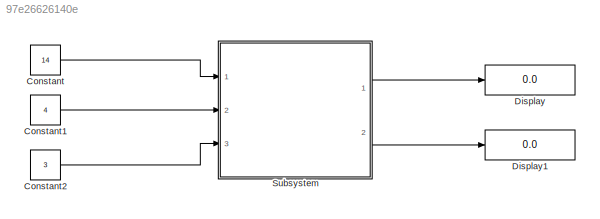
MODEL slx_97e26626140e
KIND model
CONFIG AbsTol = auto
CONFIG FixedStep = auto
CONFIG MaxStep = auto
CONFIG MinStep = auto
CONFIG RelTol = 1e-3
CONFIG SampleTimeConstraint = Unconstrained
CONFIG Solver = FixedStepDiscrete
CONFIG SolverMode = SingleTasking
CONFIG SolverName = FixedStepDiscrete
CONFIG StartTime = 0.0
CONFIG StopTime = 3
BLOCK [Constant] Constant
  OutDataTypeStr = int8
  SampleTime = 1
  Value = 14
BLOCK [Constant] Constant1
  OutDataTypeStr = int8
  SampleTime = 1
  Value = 4
BLOCK [Constant] Constant2
  OutDataTypeStr = int8
  SampleTime = 1
  Value = 3
BLOCK [Display] Display
  Decimation = 1
  Ports = [1]
BLOCK [Display] Display1
  Decimation = 1
  Ports = [1]
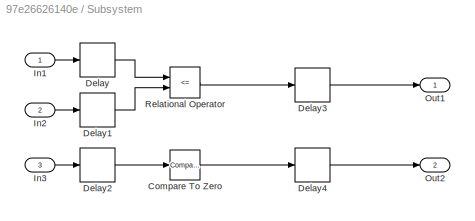
BLOCK [SubSystem] Subsystem
  Ports = [3, 2]
  RequestExecContextInheritance = off
  Variant = off
BLOCK [Reference] Subsystem/Compare To Zero  REF=simulink/Logic and Bit
Operations/Compare
To Zero
  Ports = [1, 1]
  SourceBlock = simulink/Logic and Bit\nOperations/Compare\nTo Zero
  SourceType = Compare To Zero
BLOCK [Delay] Subsystem/Delay
  DelayLength = 1
  InputPortMap = u0
  Ports = [1, 1]
BLOCK [Delay] Subsystem/Delay1
  DelayLength = 1
  InputPortMap = u0
  Ports = [1, 1]
BLOCK [Delay] Subsystem/Delay2
  DelayLength = 1
  InputPortMap = u0
  Ports = [1, 1]
BLOCK [Delay] Subsystem/Delay3
  DelayLength = 1
  InputPortMap = u0
  Ports = [1, 1]
BLOCK [Delay] Subsystem/Delay4
  DelayLength = 1
  InputPortMap = u0
  Ports = [1, 1]
BLOCK [Inport] Subsystem/In1
  IconDisplay = Port number
BLOCK [Inport] Subsystem/In2
  IconDisplay = Port number
  Port = 2
BLOCK [Inport] Subsystem/In3
  IconDisplay = Port number
  Port = 3
BLOCK [Outport] Subsystem/Out1
  IconDisplay = Port number
BLOCK [Outport] Subsystem/Out2
  IconDisplay = Port number
  Port = 2
BLOCK [RelationalOperator] Subsystem/Relational Operator
  InputSameDT = off
  Operator = <=
  OutDataTypeStr = boolean
  Ports = [2, 1]
LINE Constant1:1 -> Subsystem:2
LINE Constant2:1 -> Subsystem:3
LINE Constant:1 -> Subsystem:1
LINE Subsystem/Compare To Zero:1 -> Subsystem/Delay4:1
LINE Subsystem/Delay1:1 -> Subsystem/Relational Operator:2
LINE Subsystem/Delay2:1 -> Subsystem/Compare To Zero:1
LINE Subsystem/Delay3:1 -> Subsystem/Out1:1
LINE Subsystem/Delay4:1 -> Subsystem/Out2:1
LINE Subsystem/Delay:1 -> Subsystem/Relational Operator:1
LINE Subsystem/In1:1 -> Subsystem/Delay:1
LINE Subsystem/In2:1 -> Subsystem/Delay1:1
LINE Subsystem/In3:1 -> Subsystem/Delay2:1
LINE Subsystem/Relational Operator:1 -> Subsystem/Delay3:1
LINE Subsystem:1 -> Display:1
LINE Subsystem:2 -> Display1:1
